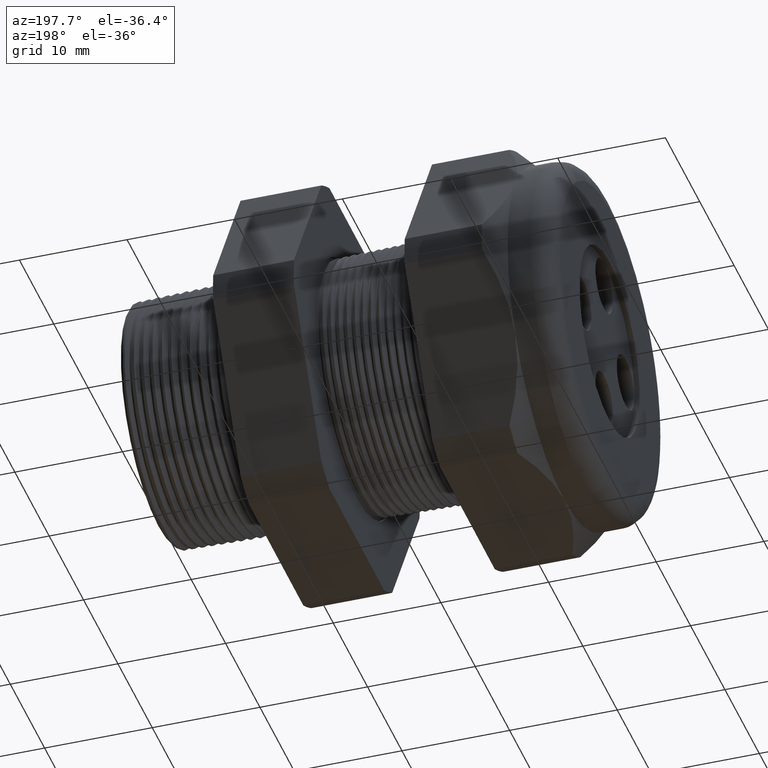
[diagram: clean part render]
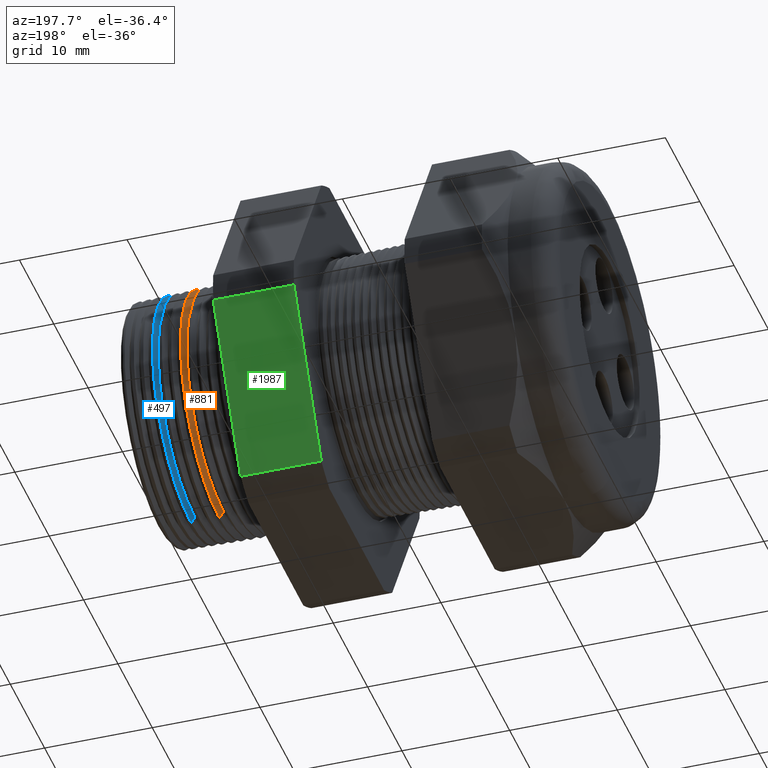
[diagram: same view with three faces highlighted in distinct colors, each labeled with its STEP entity id]
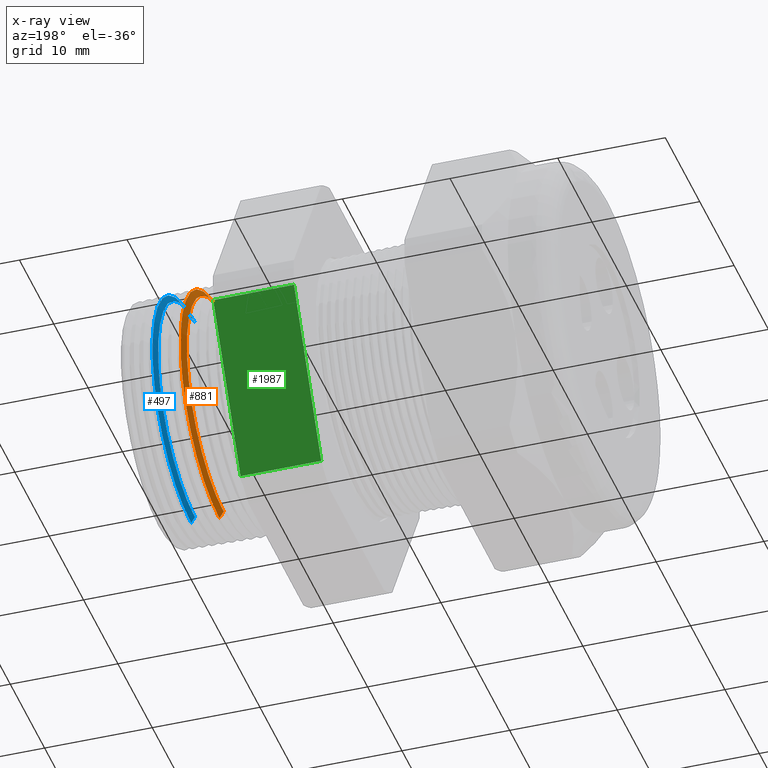
[diagram: x-ray of the same camera — body ghosted, the three highlighted faces saturated]
A machine part, auxiliary view with three faces highlighted in distinct colors.
The next image is the same camera in x-ray (body ghosted, the three faces saturated) — at least one of them is partly hidden behind the body in this view.
Their STEP definitions:

[orange] entity #881 — the highlighted conical surface has half-angle 58.5 deg.
#543 = VERTEX_POINT ( 'NONE', #2929 ) ;
#875 = VERTEX_POINT ( 'NONE', #3556 ) ;
#880 = ORIENTED_EDGE ( 'NONE', *, *, #883, .T. ) ;
#881 = ADVANCED_FACE ( 'NONE', ( #3546 ), #3545, .T. ) ;
#882 = EDGE_LOOP ( 'NONE', ( #880, #1653, #1614, #5774 ) ) ;
#883 = EDGE_CURVE ( 'NONE', #543, #875, #3544, .T. ) ;
#1581 = VERTEX_POINT ( 'NONE', #4851 ) ;
#1614 = ORIENTED_EDGE ( 'NONE', *, *, #1640, .T. ) ;
#1638 = VERTEX_POINT ( 'NONE', #4967 ) ;
#1640 = EDGE_CURVE ( 'NONE', #1638, #1581, #4966, .T. ) ;
#1646 = EDGE_CURVE ( 'NONE', #875, #1638, #4959, .T. ) ;
#1653 = ORIENTED_EDGE ( 'NONE', *, *, #1646, .T. ) ;
#2929 = CARTESIAN_POINT ( 'NONE',  ( -0.1184707356790752100, 5.316384437367407500E-017, -0.4212184895733915900 ) ) ;
#3536 = DIRECTION ( 'NONE',  ( 0.0000000000000000000, 0.0000000000000000000, -1.000000000000000000 ) ) ;
#3537 = DIRECTION ( 'NONE',  ( 1.000000000000000000, 0.0000000000000000000, 0.0000000000000000000 ) ) ;
#3538 = CARTESIAN_POINT ( 'NONE',  ( -0.1184707356790752100, 0.0000000000000000000, 0.0000000000000000000 ) ) ;
#3539 = AXIS2_PLACEMENT_3D ( 'NONE', #3538, #3537, #3536 ) ;
#3540 = DIRECTION ( 'NONE',  ( 0.0000000000000000000, 0.0000000000000000000, -1.000000000000000000 ) ) ;
#3541 = DIRECTION ( 'NONE',  ( 1.000000000000000000, 0.0000000000000000000, 0.0000000000000000000 ) ) ;
#3542 = CARTESIAN_POINT ( 'NONE',  ( -0.1184707356790752100, 0.0000000000000000000, 0.0000000000000000000 ) ) ;
#3543 = AXIS2_PLACEMENT_3D ( 'NONE', #3542, #3541, #3540 ) ;
#3544 = CIRCLE ( 'NONE', #3539, 0.4212184895733915900 ) ;
#3545 = CONICAL_SURFACE ( 'NONE', #3543, 0.4212184895733915900, 1.021017612416699400 ) ;
#3546 = FACE_OUTER_BOUND ( 'NONE', #882, .T. ) ;
#3556 = CARTESIAN_POINT ( 'NONE',  ( -0.1184707356790752100, 0.0000000000000000000, 0.4212184895733915900 ) ) ;
#4851 = CARTESIAN_POINT ( 'NONE',  ( -0.1031346857808554700, 5.464920803899467900E-017, -0.4462446484736953300 ) ) ;
#4952 = DIRECTION ( 'NONE',  ( 0.5224985647159347000, 1.044183048100722800E-016, 0.8526401643541008400 ) ) ;
#4953 = VECTOR ( 'NONE', #4952, 39.37007874015748100 ) ;
#4954 = CARTESIAN_POINT ( 'NONE',  ( -0.1184707356790752100, 5.158438749977368000E-017, 0.4212184895733915900 ) ) ;
#4959 = LINE ( 'NONE', #4954, #4953 ) ;
#4962 = DIRECTION ( 'NONE',  ( 0.0000000000000000000, 0.0000000000000000000, -1.000000000000000000 ) ) ;
#4963 = DIRECTION ( 'NONE',  ( -1.000000000000000000, 0.0000000000000000000, 0.0000000000000000000 ) ) ;
#4964 = CARTESIAN_POINT ( 'NONE',  ( -0.1031346857808554700, 0.0000000000000000000, 0.0000000000000000000 ) ) ;
#4965 = AXIS2_PLACEMENT_3D ( 'NONE', #4964, #4963, #4962 ) ;
#4966 = CIRCLE ( 'NONE', #4965, 0.4462446484736953300 ) ;
#4967 = CARTESIAN_POINT ( 'NONE',  ( -0.1031346857808554700, 0.0000000000000000000, 0.4462446484736953300 ) ) ;
#5618 = DIRECTION ( 'NONE',  ( 0.5224985647159347000, 0.0000000000000000000, -0.8526401643541008400 ) ) ;
#5619 = VECTOR ( 'NONE', #5618, 39.37007874015748100 ) ;
#5620 = CARTESIAN_POINT ( 'NONE',  ( -0.1184707356790752100, 0.0000000000000000000, -0.4212184895733915900 ) ) ;
#5621 = LINE ( 'NONE', #5620, #5619 ) ;
#5773 = EDGE_CURVE ( 'NONE', #543, #1581, #5621, .T. ) ;
#5774 = ORIENTED_EDGE ( 'NONE', *, *, #5773, .F. ) ;

[blue] entity #497 — the highlighted conical surface has half-angle 58.5 deg.
#469 = EDGE_LOOP ( 'NONE', ( #474, #758, #1542, #5783 ) ) ;
#471 = EDGE_CURVE ( 'NONE', #477, #5778, #2743, .T. ) ;
#474 = ORIENTED_EDGE ( 'NONE', *, *, #471, .T. ) ;
#477 = VERTEX_POINT ( 'NONE', #2795 ) ;
#497 = ADVANCED_FACE ( 'NONE', ( #2820 ), #2817, .T. ) ;
#758 = ORIENTED_EDGE ( 'NONE', *, *, #1637, .T. ) ;
#1539 = EDGE_CURVE ( 'NONE', #5799, #5788, #4840, .T. ) ;
#1542 = ORIENTED_EDGE ( 'NONE', *, *, #1539, .T. ) ;
#1637 = EDGE_CURVE ( 'NONE', #5778, #5799, #4908, .T. ) ;
#2742 = AXIS2_PLACEMENT_3D ( 'NONE', #2803, #2802, #2801 ) ;
#2743 = CIRCLE ( 'NONE', #2742, 0.4212184895733915900 ) ;
#2795 = CARTESIAN_POINT ( 'NONE',  ( -0.01347073567907519600, 5.299305649514591300E-017, -0.4212184895733915900 ) ) ;
#2801 = DIRECTION ( 'NONE',  ( 0.0000000000000000000, 0.0000000000000000000, -1.000000000000000000 ) ) ;
#2802 = DIRECTION ( 'NONE',  ( 1.000000000000000000, 0.0000000000000000000, 0.0000000000000000000 ) ) ;
#2803 = CARTESIAN_POINT ( 'NONE',  ( -0.01347073567907519600, 0.0000000000000000000, 0.0000000000000000000 ) ) ;
#2814 = DIRECTION ( 'NONE',  ( 0.0000000000000000000, 0.0000000000000000000, -1.000000000000000000 ) ) ;
#2815 = DIRECTION ( 'NONE',  ( 1.000000000000000000, 0.0000000000000000000, 0.0000000000000000000 ) ) ;
#2816 = AXIS2_PLACEMENT_3D ( 'NONE', #2819, #2815, #2814 ) ;
#2817 = CONICAL_SURFACE ( 'NONE', #2816, 0.4212184895733915900, 1.021017612416699400 ) ;
#2819 = CARTESIAN_POINT ( 'NONE',  ( -0.01347073567907519600, 0.0000000000000000000, 0.0000000000000000000 ) ) ;
#2820 = FACE_OUTER_BOUND ( 'NONE', #469, .T. ) ;
#4780 = CARTESIAN_POINT ( 'NONE',  ( 0.0002070154264371303800, 0.0000000000000000000, 0.0000000000000000000 ) ) ;
#4837 = DIRECTION ( 'NONE',  ( 0.0000000000000000000, 0.0000000000000000000, -1.000000000000000000 ) ) ;
#4838 = DIRECTION ( 'NONE',  ( -1.000000000000000000, 0.0000000000000000000, 0.0000000000000000000 ) ) ;
#4839 = AXIS2_PLACEMENT_3D ( 'NONE', #4780, #4838, #4837 ) ;
#4840 = CIRCLE ( 'NONE', #4839, 0.4435385507910555300 ) ;
#4905 = DIRECTION ( 'NONE',  ( 0.5224985647159347000, 1.044183048100722800E-016, 0.8526401643541008400 ) ) ;
#4906 = VECTOR ( 'NONE', #4905, 39.37007874015748100 ) ;
#4907 = CARTESIAN_POINT ( 'NONE',  ( -0.01347073567907519600, 5.158438749977368000E-017, 0.4212184895733915900 ) ) ;
#4908 = LINE ( 'NONE', #4907, #4906 ) ;
#5612 = CARTESIAN_POINT ( 'NONE',  ( -0.01347073567907519600, 0.0000000000000000000, 0.4212184895733915900 ) ) ;
#5614 = DIRECTION ( 'NONE',  ( 0.5224985647159347000, 0.0000000000000000000, -0.8526401643541008400 ) ) ;
#5615 = VECTOR ( 'NONE', #5614, 39.37007874015748100 ) ;
#5616 = CARTESIAN_POINT ( 'NONE',  ( -0.01347073567907519600, 0.0000000000000000000, -0.4212184895733915900 ) ) ;
#5617 = LINE ( 'NONE', #5616, #5615 ) ;
#5656 = CARTESIAN_POINT ( 'NONE',  ( 0.0002070154264371303800, 5.431780665247218800E-017, -0.4435385507910555300 ) ) ;
#5683 = CARTESIAN_POINT ( 'NONE',  ( 0.0002070154264371303800, 0.0000000000000000000, 0.4435385507910555300 ) ) ;
#5775 = EDGE_CURVE ( 'NONE', #477, #5788, #5617, .T. ) ;
#5778 = VERTEX_POINT ( 'NONE', #5612 ) ;
#5783 = ORIENTED_EDGE ( 'NONE', *, *, #5775, .F. ) ;
#5788 = VERTEX_POINT ( 'NONE', #5656 ) ;
#5799 = VERTEX_POINT ( 'NONE', #5683 ) ;

[green] entity #1987 — the highlighted planar face has unit normal (0, 0.866, -0.5).
#1364 = EDGE_CURVE ( 'NONE', #1365, #1366, #4538, .T. ) ;
#1365 = VERTEX_POINT ( 'NONE', #4534 ) ;
#1366 = VERTEX_POINT ( 'NONE', #4533 ) ;
#1438 = VERTEX_POINT ( 'NONE', #4657 ) ;
#1440 = EDGE_CURVE ( 'NONE', #1438, #1441, #4656, .T. ) ;
#1441 = VERTEX_POINT ( 'NONE', #4652 ) ;
#1477 = EDGE_CURVE ( 'NONE', #1366, #1438, #4744, .T. ) ;
#1969 = ORIENTED_EDGE ( 'NONE', *, *, #1364, .F. ) ;
#1985 = EDGE_CURVE ( 'NONE', #1365, #1441, #5550, .T. ) ;
#1987 = ADVANCED_FACE ( 'NONE', ( #5541 ), #5606, .T. ) ;
#1988 = EDGE_LOOP ( 'NONE', ( #2035, #2036, #2037, #1969 ) ) ;
#2035 = ORIENTED_EDGE ( 'NONE', *, *, #1985, .T. ) ;
#2036 = ORIENTED_EDGE ( 'NONE', *, *, #1440, .F. ) ;
#2037 = ORIENTED_EDGE ( 'NONE', *, *, #1477, .F. ) ;
#4533 = CARTESIAN_POINT ( 'NONE',  ( -0.3100000000000000000, 0.7194909755756817600, -0.05380507471562094600 ) ) ;
#4534 = CARTESIAN_POINT ( 'NONE',  ( -0.3100000000000000000, 0.4063420493440886800, -0.5961949252843790100 ) ) ;
#4535 = DIRECTION ( 'NONE',  ( 0.0000000000000000000, 0.4999999999999996100, 0.8660254037844388200 ) ) ;
#4536 = VECTOR ( 'NONE', #4535, 39.37007874015748900 ) ;
#4537 = CARTESIAN_POINT ( 'NONE',  ( -0.3100000000000000000, 0.8879165124598849000, 0.2379165124598850200 ) ) ;
#4538 = LINE ( 'NONE', #4537, #4536 ) ;
#4652 = CARTESIAN_POINT ( 'NONE',  ( -0.6052755905511809600, 0.4063420493440886800, -0.5961949252843791200 ) ) ;
#4653 = DIRECTION ( 'NONE',  ( 0.0000000000000000000, -0.4999999999999996100, -0.8660254037844388200 ) ) ;
#4654 = VECTOR ( 'NONE', #4653, 39.37007874015748900 ) ;
#4655 = CARTESIAN_POINT ( 'NONE',  ( -0.6052755905511809600, 0.8879165124598849000, 0.2379165124598850200 ) ) ;
#4656 = LINE ( 'NONE', #4655, #4654 ) ;
#4657 = CARTESIAN_POINT ( 'NONE',  ( -0.6052755905511810800, 0.7194909755756818700, -0.05380507471562089700 ) ) ;
#4737 = DIRECTION ( 'NONE',  ( -1.000000000000000000, 0.0000000000000000000, 0.0000000000000000000 ) ) ;
#4738 = VECTOR ( 'NONE', #4737, 39.37007874015748100 ) ;
#4739 = CARTESIAN_POINT ( 'NONE',  ( 0.1200000000000000900, 0.7194909755756818700, -0.05380507471562089700 ) ) ;
#4744 = LINE ( 'NONE', #4739, #4738 ) ;
#5541 = FACE_OUTER_BOUND ( 'NONE', #1988, .T. ) ;
#5542 = DIRECTION ( 'NONE',  ( -1.000000000000000000, 0.0000000000000000000, 0.0000000000000000000 ) ) ;
#5543 = VECTOR ( 'NONE', #5542, 39.37007874015748100 ) ;
#5544 = CARTESIAN_POINT ( 'NONE',  ( 0.1200000000000000900, 0.4063420493440886800, -0.5961949252843790100 ) ) ;
#5550 = LINE ( 'NONE', #5544, #5543 ) ;
#5602 = DIRECTION ( 'NONE',  ( 0.0000000000000000000, 0.4999999999999996100, 0.8660254037844388200 ) ) ;
#5603 = DIRECTION ( 'NONE',  ( 0.0000000000000000000, 0.8660254037844388200, -0.4999999999999996100 ) ) ;
#5604 = CARTESIAN_POINT ( 'NONE',  ( 0.1200000000000000900, 0.7194909755756818700, -0.05380507471562089700 ) ) ;
#5605 = AXIS2_PLACEMENT_3D ( 'NONE', #5604, #5603, #5602 ) ;
#5606 = PLANE ( 'NONE',  #5605 ) ;